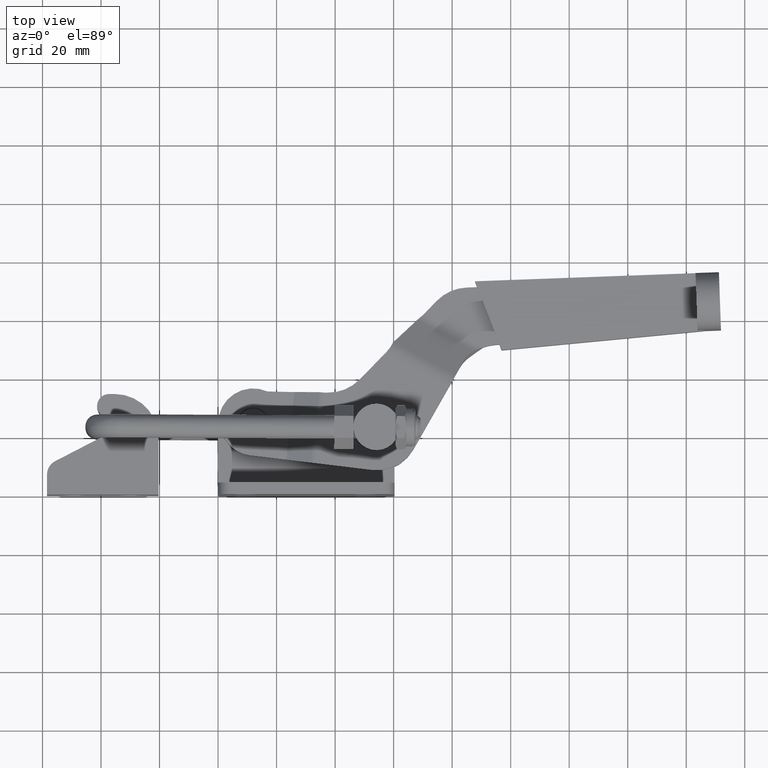
[diagram: clean part render]
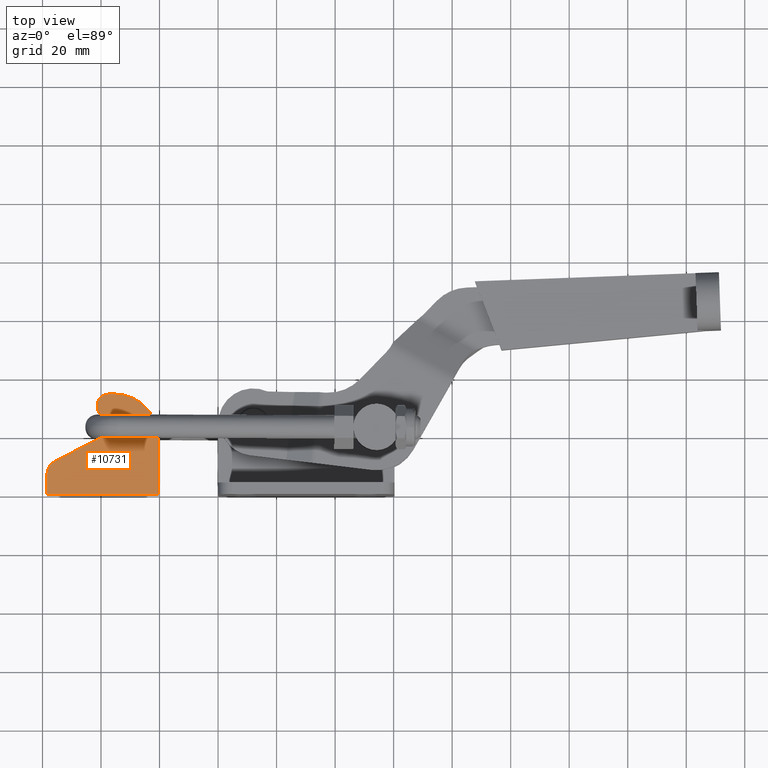
[diagram: same view with one face highlighted and labeled with its STEP entity id]
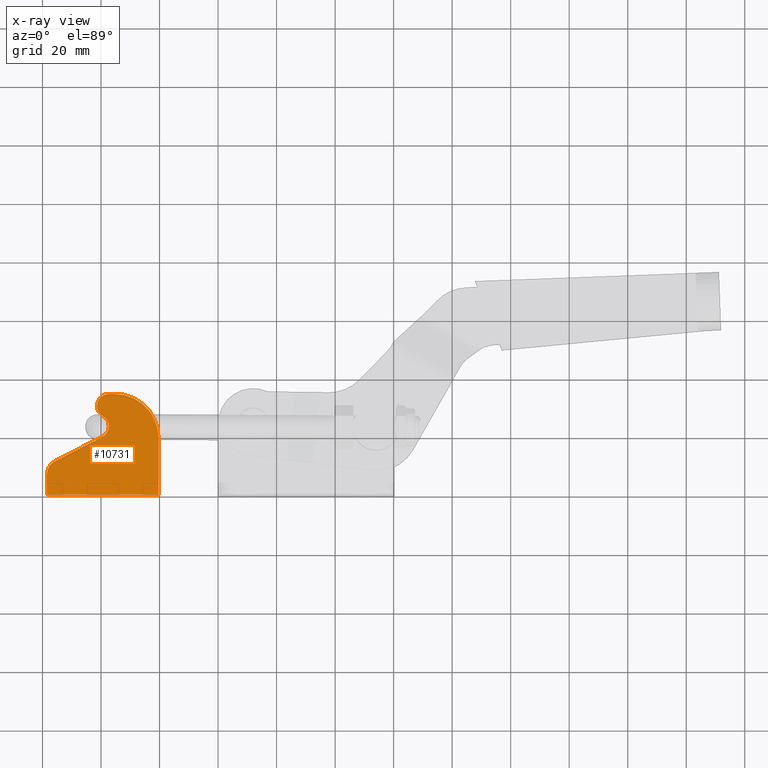
[diagram: x-ray of the same camera — body ghosted, the highlighted face saturated]
A machine part, top view. The second image highlights one B-rep face of the part: STEP entity #10731.
The next image is the same camera in x-ray: the body ghosted, the highlighted face saturated — about 0% of this face is hidden behind the body in this view.
In plain terms, the highlighted planar face has unit normal (0, 0, 1).
Its self-contained STEP definition (entity closure, byte-faithful):
#27 = LINE ( 'NONE', #4344, #2245 ) ;
#46 = EDGE_CURVE ( 'NONE', #4264, #1262, #2578, .T. ) ;
#52 = CARTESIAN_POINT ( 'NONE',  ( -37.26006940042229600, 34.39999999999984200, 15.10000000000000000 ) ) ;
#256 = AXIS2_PLACEMENT_3D ( 'NONE', #2345, #8349, #3203 ) ;
#332 = AXIS2_PLACEMENT_3D ( 'NONE', #10616, #5453, #364 ) ;
#364 = DIRECTION ( 'NONE',  ( 1.000000000000000000, 0.0000000000000000000, 0.0000000000000000000 ) ) ;
#429 = LINE ( 'NONE', #899, #4933 ) ;
#624 = ORIENTED_EDGE ( 'NONE', *, *, #1573, .T. ) ;
#899 = CARTESIAN_POINT ( 'NONE',  ( -20.34730917469627800, 19.39999999999974300, 15.10000000000000000 ) ) ;
#1029 = VERTEX_POINT ( 'NONE', #52 ) ;
#1065 = CIRCLE ( 'NONE', #7943, 4.000000000000003600 ) ;
#1245 = AXIS2_PLACEMENT_3D ( 'NONE', #9506, #4336, #10387 ) ;
#1262 = VERTEX_POINT ( 'NONE', #9330 ) ;
#1328 = ORIENTED_EDGE ( 'NONE', *, *, #7873, .T. ) ;
#1573 = EDGE_CURVE ( 'NONE', #7838, #8133, #1065, .T. ) ;
#2245 = VECTOR ( 'NONE', #8613, 1000.000000000000000 ) ;
#2255 = EDGE_CURVE ( 'NONE', #8133, #2687, #4789, .T. ) ;
#2345 = CARTESIAN_POINT ( 'NONE',  ( -35.34730917469638500, 19.39999999999973900, 15.10000000000000000 ) ) ;
#2356 = EDGE_LOOP ( 'NONE', ( #6301, #8577, #3514, #7428, #8217, #624, #4761, #1328, #10895, #5706, #2392 ) ) ;
#2392 = ORIENTED_EDGE ( 'NONE', *, *, #7588, .T. ) ;
#2578 = LINE ( 'NONE', #8664, #8899 ) ;
#2687 = VERTEX_POINT ( 'NONE', #9566 ) ;
#2697 = CARTESIAN_POINT ( 'NONE',  ( -37.26006940042229600, 30.31999999999999300, 15.10000000000000000 ) ) ;
#2811 = CARTESIAN_POINT ( 'NONE',  ( -41.34006940042214500, 30.31999999999999300, 15.10000000000000000 ) ) ;
#2835 = CARTESIAN_POINT ( 'NONE',  ( -55.74475118891695000, 11.39812738727475500, 15.10000000000000000 ) ) ;
#3203 = DIRECTION ( 'NONE',  ( 1.000000000000000000, 0.0000000000000000000, 0.0000000000000000000 ) ) ;
#3223 = VERTEX_POINT ( 'NONE', #7805 ) ;
#3260 = DIRECTION ( 'NONE',  ( 1.000000000000000000, 1.460186980988509000E-016, -0.0000000000000000000 ) ) ;
#3264 = AXIS2_PLACEMENT_3D ( 'NONE', #3986, #10032, #4862 ) ;
#3331 = CARTESIAN_POINT ( 'NONE',  ( -37.26006940042229600, 34.39999999999983500, 15.10000000000000000 ) ) ;
#3514 = ORIENTED_EDGE ( 'NONE', *, *, #9918, .T. ) ;
#3554 = DIRECTION ( 'NONE',  ( 1.000000000000000000, 0.0000000000000000000, 0.0000000000000000000 ) ) ;
#3802 = CIRCLE ( 'NONE', #256, 15.00000000000010300 ) ;
#3852 = CIRCLE ( 'NONE', #9780, 4.079999999999847300 ) ;
#3986 = CARTESIAN_POINT ( 'NONE',  ( -53.44730917469632200, 6.957208541889819700, 15.10000000000000000 ) ) ;
#4109 = EDGE_CURVE ( 'NONE', #6673, #5661, #3802, .T. ) ;
#4203 = CARTESIAN_POINT ( 'NONE',  ( -58.44730917469645000, -5.366800753803246900E-015, 15.10000000000000000 ) ) ;
#4264 = VERTEX_POINT ( 'NONE', #4203 ) ;
#4334 = CARTESIAN_POINT ( 'NONE',  ( -39.50935201906700900, 19.79726492369213600, 15.10000000000000000 ) ) ;
#4336 = DIRECTION ( 'NONE',  ( -0.0000000000000000000, -0.0000000000000000000, -1.000000000000000000 ) ) ;
#4344 = CARTESIAN_POINT ( 'NONE',  ( -58.44730917469645000, 6.957208541889818900, 15.10000000000000000 ) ) ;
#4465 = CARTESIAN_POINT ( 'NONE',  ( -20.34730917469627800, 19.39999999999974300, 15.10000000000000000 ) ) ;
#4761 = ORIENTED_EDGE ( 'NONE', *, *, #2255, .T. ) ;
#4789 = LINE ( 'NONE', #2835, #9921 ) ;
#4862 = DIRECTION ( 'NONE',  ( 1.000000000000000000, 0.0000000000000000000, 0.0000000000000000000 ) ) ;
#4933 = VECTOR ( 'NONE', #7728, 1000.000000000000000 ) ;
#4953 = CARTESIAN_POINT ( 'NONE',  ( -41.34730563044346500, 23.34999999999999800, 15.10000000000000000 ) ) ;
#5453 = DIRECTION ( 'NONE',  ( 0.0000000000000000000, 0.0000000000000000000, 1.000000000000000000 ) ) ;
#5491 = EDGE_CURVE ( 'NONE', #3223, #7838, #6190, .T. ) ;
#5564 = DIRECTION ( 'NONE',  ( 1.000000000000000000, 0.0000000000000000000, -0.0000000000000000000 ) ) ;
#5661 = VERTEX_POINT ( 'NONE', #7239 ) ;
#5664 = LINE ( 'NONE', #3331, #9713 ) ;
#5674 = VERTEX_POINT ( 'NONE', #6392 ) ;
#5706 = ORIENTED_EDGE ( 'NONE', *, *, #46, .T. ) ;
#6190 = CIRCLE ( 'NONE', #1245, 4.000000000000003600 ) ;
#6266 = FACE_OUTER_BOUND ( 'NONE', #2356, .T. ) ;
#6301 = ORIENTED_EDGE ( 'NONE', *, *, #4109, .T. ) ;
#6392 = CARTESIAN_POINT ( 'NONE',  ( -58.44730917469645000, 6.957208541889818900, 15.10000000000000000 ) ) ;
#6562 = DIRECTION ( 'NONE',  ( 1.000000000000000000, 0.0000000000000000000, 0.0000000000000000000 ) ) ;
#6597 = AXIS2_PLACEMENT_3D ( 'NONE', #9820, #10725, #5564 ) ;
#6673 = VERTEX_POINT ( 'NONE', #4465 ) ;
#7015 = CIRCLE ( 'NONE', #3264, 5.000000000000122600 ) ;
#7090 = CIRCLE ( 'NONE', #332, 4.079999999999847300 ) ;
#7221 = DIRECTION ( 'NONE',  ( -0.0000000000000000000, -0.0000000000000000000, -1.000000000000000000 ) ) ;
#7239 = CARTESIAN_POINT ( 'NONE',  ( -35.34730917469639200, 34.39999999999984200, 15.10000000000000000 ) ) ;
#7428 = ORIENTED_EDGE ( 'NONE', *, *, #10661, .T. ) ;
#7588 = EDGE_CURVE ( 'NONE', #1262, #6673, #429, .T. ) ;
#7728 = DIRECTION ( 'NONE',  ( -0.0000000000000000000, 1.000000000000000000, -0.0000000000000000000 ) ) ;
#7805 = CARTESIAN_POINT ( 'NONE',  ( -39.32392135815571500, 26.80049504950501000, 15.10000000000000000 ) ) ;
#7838 = VERTEX_POINT ( 'NONE', #9057 ) ;
#7873 = EDGE_CURVE ( 'NONE', #2687, #5674, #7015, .T. ) ;
#7943 = AXIS2_PLACEMENT_3D ( 'NONE', #4953, #7221, #6562 ) ;
#8028 = EDGE_CURVE ( 'NONE', #5661, #1029, #5664, .T. ) ;
#8133 = VERTEX_POINT ( 'NONE', #4334 ) ;
#8217 = ORIENTED_EDGE ( 'NONE', *, *, #5491, .T. ) ;
#8349 = DIRECTION ( 'NONE',  ( 0.0000000000000000000, 0.0000000000000000000, 1.000000000000000000 ) ) ;
#8577 = ORIENTED_EDGE ( 'NONE', *, *, #8028, .T. ) ;
#8613 = DIRECTION ( 'NONE',  ( -1.246709413360200200E-016, -1.000000000000000000, 0.0000000000000000000 ) ) ;
#8664 = CARTESIAN_POINT ( 'NONE',  ( -20.34730917469627800, 1.965116437629976800E-016, 15.10000000000000000 ) ) ;
#8710 = DIRECTION ( 'NONE',  ( 0.0000000000000000000, 0.0000000000000000000, 1.000000000000000000 ) ) ;
#8854 = DIRECTION ( 'NONE',  ( -0.8881837690769656100, -0.4594884028441144600, -0.0000000000000000000 ) ) ;
#8899 = VECTOR ( 'NONE', #3260, 1000.000000000000000 ) ;
#8996 = PLANE ( 'NONE',  #6597 ) ;
#9057 = CARTESIAN_POINT ( 'NONE',  ( -37.34735007127072500, 23.33114463887526600, 15.10000000000000000 ) ) ;
#9251 = VERTEX_POINT ( 'NONE', #2811 ) ;
#9330 = CARTESIAN_POINT ( 'NONE',  ( -20.34730917469627800, 1.965116437629976800E-016, 15.10000000000000000 ) ) ;
#9506 = CARTESIAN_POINT ( 'NONE',  ( -41.34730563044346500, 23.34999999999999800, 15.10000000000000000 ) ) ;
#9566 = CARTESIAN_POINT ( 'NONE',  ( -55.74475118891695000, 11.39812738727475700, 15.10000000000000000 ) ) ;
#9713 = VECTOR ( 'NONE', #10184, 1000.000000000000000 ) ;
#9780 = AXIS2_PLACEMENT_3D ( 'NONE', #2697, #8710, #3554 ) ;
#9820 = CARTESIAN_POINT ( 'NONE',  ( -35.34730917469638500, 19.39999999999973900, 15.10000000000000000 ) ) ;
#9918 = EDGE_CURVE ( 'NONE', #1029, #9251, #3852, .T. ) ;
#9921 = VECTOR ( 'NONE', #8854, 1000.000000000000200 ) ;
#10032 = DIRECTION ( 'NONE',  ( 0.0000000000000000000, 0.0000000000000000000, 1.000000000000000000 ) ) ;
#10184 = DIRECTION ( 'NONE',  ( -1.000000000000000000, -3.627686215230587500E-015, -0.0000000000000000000 ) ) ;
#10387 = DIRECTION ( 'NONE',  ( 1.000000000000000000, 0.0000000000000000000, 0.0000000000000000000 ) ) ;
#10616 = CARTESIAN_POINT ( 'NONE',  ( -37.26006940042229600, 30.31999999999999300, 15.10000000000000000 ) ) ;
#10661 = EDGE_CURVE ( 'NONE', #9251, #3223, #7090, .T. ) ;
#10725 = DIRECTION ( 'NONE',  ( 0.0000000000000000000, 0.0000000000000000000, 1.000000000000000000 ) ) ;
#10731 = ADVANCED_FACE ( 'NONE', ( #6266 ), #8996, .T. ) ;
#10895 = ORIENTED_EDGE ( 'NONE', *, *, #11036, .T. ) ;
#11036 = EDGE_CURVE ( 'NONE', #5674, #4264, #27, .T. ) ;